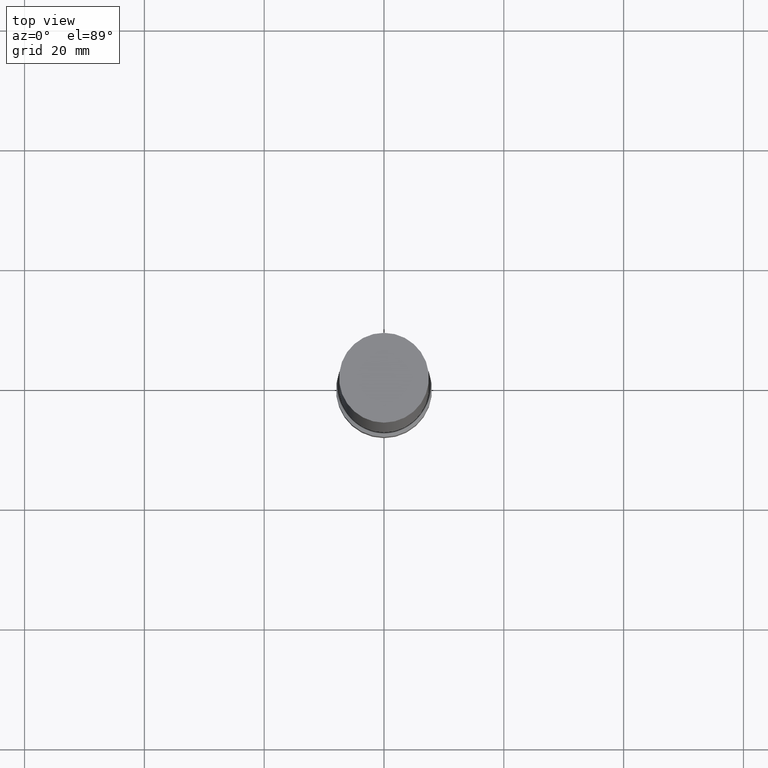
[diagram: clean part render]
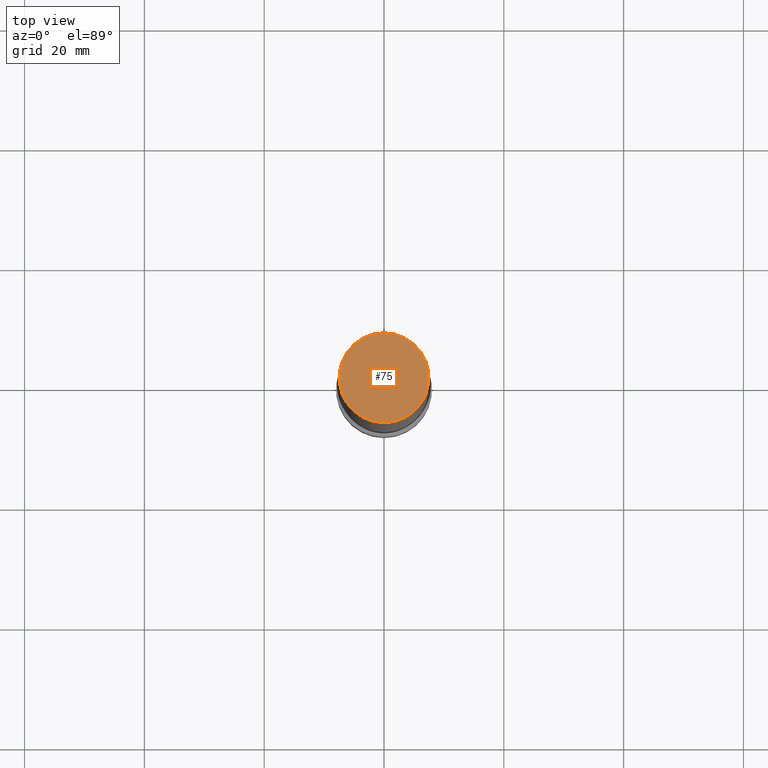
[diagram: same view with one face highlighted and labeled with its STEP entity id]
A machine part, top view. The second image highlights one B-rep face of the part: STEP entity #75.
In plain terms, the highlighted planar face has unit normal (-0, 0, 1).
Its self-contained STEP definition (entity closure, byte-faithful):
#75=ADVANCED_FACE('',(#83),#84,.T.);
#83=FACE_OUTER_BOUND('',#102,.T.);
#84=PLANE('',#103);
#102=EDGE_LOOP('',(#121));
#103=AXIS2_PLACEMENT_3D('',#122,#123,#124);
#121=ORIENTED_EDGE('',*,*,#154,.F.);
#122=CARTESIAN_POINT('',(-7.34788079488411E-015,3.74999999999953,120.0));
#123=DIRECTION('',(-6.12323399573677E-017,4.01908415000644E-014,1.0));
#124=DIRECTION('',(-2.45615211717385E-030,-1.0,4.01908415000644E-014));
#154=EDGE_CURVE('',#160,#160,#161,.T.);
#160=VERTEX_POINT('',#172);
#161=CIRCLE('',#173,7.49999999999911);
#172=CARTESIAN_POINT('',(-7.3478807948841E-015,7.49999999999908,120.0));
#173=AXIS2_PLACEMENT_3D('',#184,#185,#186);
#184=CARTESIAN_POINT('',(-7.3478807948841E-015,-2.86629747045223E-014,120.0));
#185=DIRECTION('',(6.12323399573677E-017,2.38858122537686E-016,-1.0));
#186=DIRECTION('',(-1.94529944915752E-032,1.0,2.38858122537686E-016));